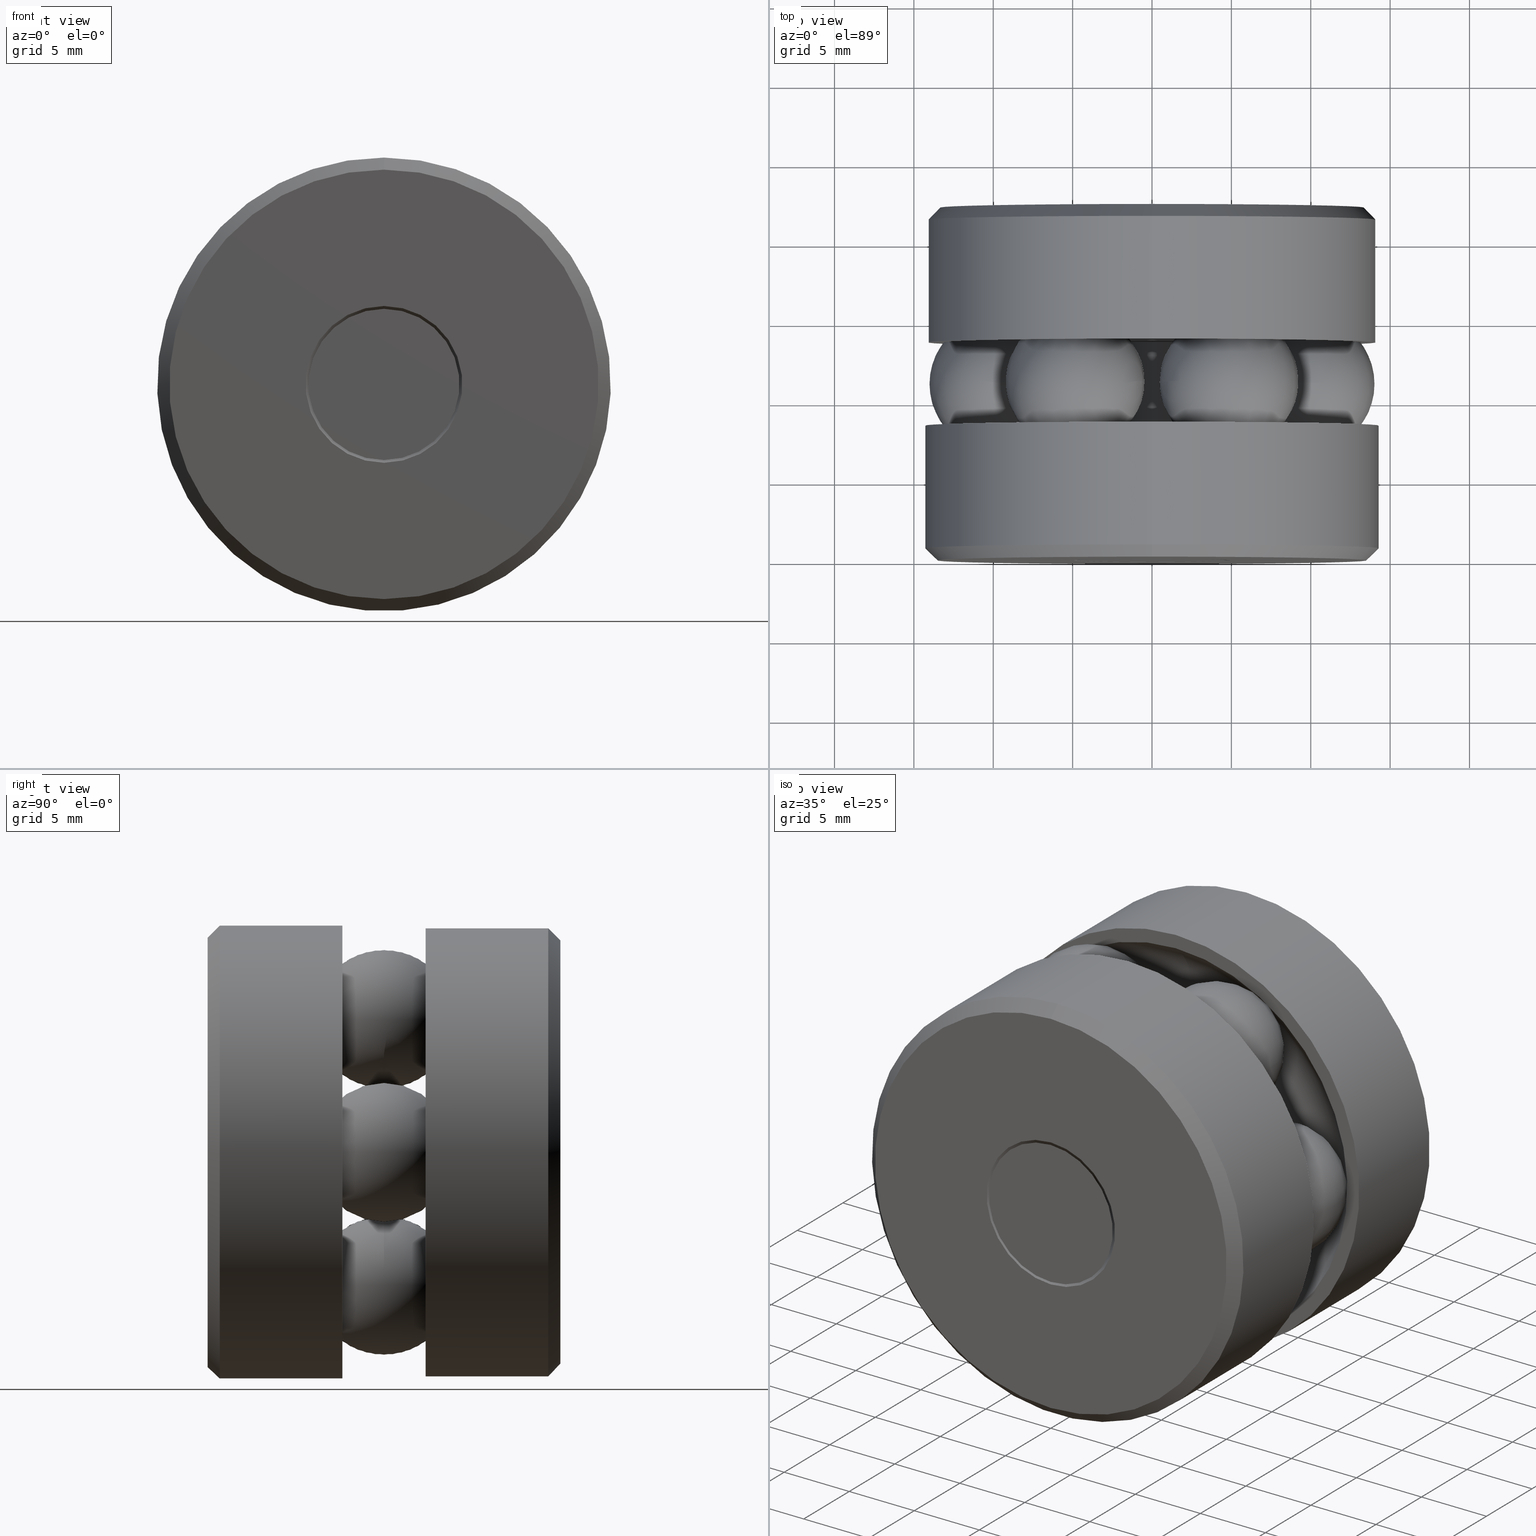
[diagram: canonical four-view strip — front | top / right | iso, engineering-drawing reading convention]
A machine part, canonical four-view strip (front | top / right | iso — engineering-drawing reading convention). The complete STEP part file that produces these views, byte-faithful:
ISO-10303-21;
HEADER;
FILE_DESCRIPTION (( 'STEP AP203' ),
    '1' );
FILE_NAME ('T-114RG_T-114RG-1002.step',
    '2016-02-04T15:34:11',
    ( '' ),
    ( '' ),
    'SwSTEP 2.0',
    'SolidWorks 2016',
    '' );
FILE_SCHEMA (( 'CONFIG_CONTROL_DESIGN' ));
ENDSEC;

DATA;
#1 = PLANE ( 'NONE',  #497 ) ;
#2 = EDGE_LOOP ( 'NONE', ( #476 ) ) ;
#3 = EDGE_CURVE ( 'NONE', #342, #342, #218, .T. ) ;
#4 = EDGE_LOOP ( 'NONE', ( #92 ) ) ;
#5 = CIRCLE ( 'NONE', #323, 0.5554999999999998800 ) ;
#6 = CC_DESIGN_DATE_AND_TIME_ASSIGNMENT ( #148, #427, ( #503 ) ) ;
#7 = CARTESIAN_POINT ( 'NONE',  ( 0.0000000000000000000, 0.1114460678118654500, 0.08299999999999999000 ) ) ;
#8 = UNCERTAINTY_MEASURE_WITH_UNIT (LENGTH_MEASURE( 1.000000000000000100E-005 ), #258, 'distance_accuracy_value', 'NONE');
#9 = ADVANCED_FACE ( 'NONE', ( #426, #419 ), #78, .F. ) ;
#10 = DATE_AND_TIME ( #131, #275 ) ;
#11 = AXIS2_PLACEMENT_3D ( 'NONE', #273, #138, #114 ) ;
#12 = DIRECTION ( 'NONE',  ( 0.0000000000000000000, 0.0000000000000000000, 1.000000000000000000 ) ) ;
#13 = ADVANCED_FACE ( 'NONE', ( #194, #514 ), #408, .F. ) ;
#14 = ORIENTED_EDGE ( 'NONE', *, *, #23, .F. ) ;
#15 = FACE_OUTER_BOUND ( 'NONE', #185, .T. ) ;
#16 = DIRECTION ( 'NONE',  ( -0.0000000000000000000, 1.000000000000000000, 0.0000000000000000000 ) ) ;
#17 = DIRECTION ( 'NONE',  ( -0.0000000000000000000, 1.000000000000000000, -0.0000000000000000000 ) ) ;
#18 = AXIS2_PLACEMENT_3D ( 'NONE', #141, #289, #176 ) ;
#19 = DIRECTION ( 'NONE',  ( -0.0000000000000000000, 1.000000000000000000, -0.0000000000000000000 ) ) ;
#20 = ORIENTED_EDGE ( 'NONE', *, *, #496, .T. ) ;
#21 = ORIENTED_EDGE ( 'NONE', *, *, #453, .T. ) ;
#22 = FACE_OUTER_BOUND ( 'NONE', #528, .T. ) ;
#23 = EDGE_CURVE ( 'NONE', #526, #526, #65, .T. ) ;
#24 = PERSON_AND_ORGANIZATION ( #445, #542 ) ;
#25 = EDGE_CURVE ( 'NONE', #215, #215, #305, .T. ) ;
#26 = CLOSED_SHELL ( 'NONE', ( #449 ) ) ;
#27 = SPHERICAL_SURFACE ( 'NONE', #314, 0.1720000000000000400 ) ;
#28 = AXIS2_PLACEMENT_3D ( 'NONE', #420, #518, #382 ) ;
#29 = DIRECTION ( 'NONE',  ( -0.0000000000000000000, 1.000000000000000000, -0.0000000000000000000 ) ) ;
#30 = ORIENTED_EDGE ( 'NONE', *, *, #496, .F. ) ;
#31 = VERTEX_POINT ( 'NONE', #482 ) ;
#32 = ORIENTED_EDGE ( 'NONE', *, *, #246, .F. ) ;
#33 = FACE_OUTER_BOUND ( 'NONE', #93, .T. ) ;
#34 = DIRECTION ( 'NONE',  ( 0.0000000000000000000, 0.0000000000000000000, -1.000000000000000000 ) ) ;
#35 = APPROVAL ( #43, 'UNSPECIFIED' ) ;
#36 = PERSON_AND_ORGANIZATION ( #445, #542 ) ;
#37 = CARTESIAN_POINT ( 'NONE',  ( 0.0000000000000000000, 0.8750000000000000000, 0.0000000000000000000 ) ) ;
#38 = AXIS2_PLACEMENT_3D ( 'NONE', #187, #182, #200 ) ;
#39 = CARTESIAN_POINT ( 'NONE',  ( 0.0000000000000000000, 0.0000000000000000000, 0.0000000000000000000 ) ) ;
#40 = ORIENTED_EDGE ( 'NONE', *, *, #541, .T. ) ;
#41 = FACE_OUTER_BOUND ( 'NONE', #169, .T. ) ;
#42 = CARTESIAN_POINT ( 'NONE',  ( 0.0000000000000000000, 0.8449999999999993100, 0.5555000000000001000 ) ) ;
#43 = APPROVAL_STATUS ( 'not_yet_approved' ) ;
#44 = DIRECTION ( 'NONE',  ( -0.8660254037844397100, 0.0000000000000000000, -0.4999999999999980000 ) ) ;
#45 = CLOSED_SHELL ( 'NONE', ( #377 ) ) ;
#46 = VERTEX_POINT ( 'NONE', #147 ) ;
#47 = ORIENTED_EDGE ( 'NONE', *, *, #117, .T. ) ;
#48 = CARTESIAN_POINT ( 'NONE',  ( 0.0000000000000000000, 0.3342999999999999900, 0.0000000000000000000 ) ) ;
#49 =( GEOMETRIC_REPRESENTATION_CONTEXT ( 3 ) GLOBAL_UNCERTAINTY_ASSIGNED_CONTEXT ( ( #8 ) ) GLOBAL_UNIT_ASSIGNED_CONTEXT ( ( #258, #368, #361 ) ) REPRESENTATION_CONTEXT ( 'NONE', 'WORKASPACE' ) );
#50 = CARTESIAN_POINT ( 'NONE',  ( 0.0000000000000000000, 0.3342999999999999900, 0.2438999999999998900 ) ) ;
#51 = SPHERICAL_SURFACE ( 'NONE', #412, 0.1720000000000000400 ) ;
#52 = EDGE_CURVE ( 'NONE', #75, #75, #329, .T. ) ;
#53 = DIRECTION ( 'NONE',  ( -0.0000000000000000000, 1.000000000000000000, -0.0000000000000000000 ) ) ;
#54 = ADVANCED_FACE ( 'NONE', ( #172, #493 ), #151, .T. ) ;
#55 = DATE_AND_TIME ( #178, #309 ) ;
#56 = ORIENTED_EDGE ( 'NONE', *, *, #206, .T. ) ;
#57 = FACE_OUTER_BOUND ( 'NONE', #380, .T. ) ;
#58 = ADVANCED_FACE ( 'NONE', ( ), #51, .T. ) ;
#59 = ADVANCED_FACE ( 'NONE', ( #293, #397 ), #480, .F. ) ;
#60 = DIRECTION ( 'NONE',  ( 0.0000000000000000000, 0.0000000000000000000, 1.000000000000000000 ) ) ;
#61 = CLOSED_SHELL ( 'NONE', ( #301, #208, #522, #103, #448 ) ) ;
#62 = DIRECTION ( 'NONE',  ( -0.0000000000000000000, 1.000000000000000000, -0.0000000000000000000 ) ) ;
#63 = VERTEX_POINT ( 'NONE', #42 ) ;
#64 = EDGE_LOOP ( 'NONE', ( #14 ) ) ;
#65 = CIRCLE ( 'NONE', #261, 0.5190999999999998900 ) ;
#66 = DIRECTION ( 'NONE',  ( -0.0000000000000000000, 1.000000000000000000, -0.0000000000000000000 ) ) ;
#67 = CC_DESIGN_APPROVAL ( #35, ( #503 ) ) ;
#68 = PERSON_AND_ORGANIZATION ( #445, #542 ) ;
#69 = ORIENTED_EDGE ( 'NONE', *, *, #117, .F. ) ;
#70 = CIRCLE ( 'NONE', #473, 0.1944460678118644900 ) ;
#71 = AXIS2_PLACEMENT_3D ( 'NONE', #87, #303, #271 ) ;
#72 = CARTESIAN_POINT ( 'NONE',  ( 0.0000000000000000000, 0.0000000000000000000, 0.1944460678118641900 ) ) ;
#73 = ORIENTED_EDGE ( 'NONE', *, *, #319, .F. ) ;
#74 = CARTESIAN_POINT ( 'NONE',  ( 0.0000000000000000000, 0.3342999999999999900, 0.0000000000000000000 ) ) ;
#75 = VERTEX_POINT ( 'NONE', #328 ) ;
#76 = CARTESIAN_POINT ( 'NONE',  ( 0.0000000000000000000, 0.5406999999999999600, 0.08300000000000010100 ) ) ;
#77 = ORIENTED_EDGE ( 'NONE', *, *, #155, .T. ) ;
#78 = TOROIDAL_SURFACE ( 'NONE', #223, 0.3814999999999998900, 0.1720000000000000100 ) ;
#79 = EDGE_CURVE ( 'NONE', #513, #513, #162, .T. ) ;
#80 = DIRECTION ( 'NONE',  ( -0.0000000000000000000, 1.000000000000000000, -0.0000000000000000000 ) ) ;
#81 = ORIENTED_EDGE ( 'NONE', *, *, #494, .T. ) ;
#82 = PERSON_AND_ORGANIZATION ( #445, #542 ) ;
#83 = ORIENTED_EDGE ( 'NONE', *, *, #119, .T. ) ;
#84 = TOROIDAL_SURFACE ( 'NONE', #28, 0.3814999999999998900, 0.1720000000000000100 ) ;
#85 = DIRECTION ( 'NONE',  ( -0.0000000000000000000, 1.000000000000000000, -0.0000000000000000000 ) ) ;
#86 = SECURITY_CLASSIFICATION_LEVEL ( 'unclassified' ) ;
#87 = CARTESIAN_POINT ( 'NONE',  ( -0.1907500000000038100, 0.4375000000000000000, -0.3303886915437609900 ) ) ;
#88 = AXIS2_PLACEMENT_3D ( 'NONE', #498, #479, #393 ) ;
#89 = ORIENTED_EDGE ( 'NONE', *, *, #119, .F. ) ;
#90 = CONICAL_SURFACE ( 'NONE', #490, 0.1873749999999990100, 0.7853981633974432800 ) ;
#91 = ORIENTED_EDGE ( 'NONE', *, *, #453, .F. ) ;
#92 = ORIENTED_EDGE ( 'NONE', *, *, #52, .T. ) ;
#93 = EDGE_LOOP ( 'NONE', ( #40 ) ) ;
#94 = CARTESIAN_POINT ( 'NONE',  ( 0.0000000000000000000, -3.503272778633803100E-016, 0.0000000000000000000 ) ) ;
#95 = EDGE_LOOP ( 'NONE', ( #83 ) ) ;
#96 = COORDINATED_UNIVERSAL_TIME_OFFSET ( 5, 0, .BEHIND. ) ;
#97 = EDGE_LOOP ( 'NONE', ( #375 ) ) ;
#98 = CC_DESIGN_SECURITY_CLASSIFICATION ( #503, ( #386 ) ) ;
#99 = FACE_BOUND ( 'NONE', #249, .T. ) ;
#100 = DIRECTION ( 'NONE',  ( 0.0000000000000000000, 0.0000000000000000000, 1.000000000000000000 ) ) ;
#101 = DIRECTION ( 'NONE',  ( -0.0000000000000000000, 1.000000000000000000, -0.0000000000000000000 ) ) ;
#102 = ADVANCED_FACE ( 'NONE', ( #385, #500 ), #109, .T. ) ;
#103 = ADVANCED_FACE ( 'NONE', ( #33, #22 ), #370, .T. ) ;
#104 = DIRECTION ( 'NONE',  ( -0.0000000000000000000, 1.000000000000000000, 0.0000000000000000000 ) ) ;
#105 = EDGE_LOOP ( 'NONE', ( #73 ) ) ;
#106 = FACE_OUTER_BOUND ( 'NONE', #95, .T. ) ;
#107 = EDGE_LOOP ( 'NONE', ( #229 ) ) ;
#108 = EDGE_LOOP ( 'NONE', ( #525 ) ) ;
#109 = PLANE ( 'NONE',  #508 ) ;
#110 = CARTESIAN_POINT ( 'NONE',  ( 0.0000000000000000000, 0.0000000000000000000, 0.0000000000000000000 ) ) ;
#111 = EDGE_LOOP ( 'NONE', ( #118 ) ) ;
#112 = DIRECTION ( 'NONE',  ( 0.0000000000000000000, 0.0000000000000000000, 1.000000000000000000 ) ) ;
#113 = CLOSED_SHELL ( 'NONE', ( #338 ) ) ;
#114 = DIRECTION ( 'NONE',  ( 0.0000000000000000000, 0.0000000000000000000, 1.000000000000000000 ) ) ;
#115 = EDGE_LOOP ( 'NONE', ( #190 ) ) ;
#116 = FACE_OUTER_BOUND ( 'NONE', #254, .T. ) ;
#117 = EDGE_CURVE ( 'NONE', #417, #417, #463, .T. ) ;
#118 = ORIENTED_EDGE ( 'NONE', *, *, #3, .T. ) ;
#119 = EDGE_CURVE ( 'NONE', #315, #315, #316, .T. ) ;
#120 = CONICAL_SURFACE ( 'NONE', #345, 0.1944460678118641900, 0.7853981633974427300 ) ;
#121 = ORIENTED_EDGE ( 'NONE', *, *, #517, .T. ) ;
#122 = DIRECTION ( 'NONE',  ( 0.4999999999999980000, 0.0000000000000000000, -0.8660254037844397100 ) ) ;
#123 = AXIS2_PLACEMENT_3D ( 'NONE', #432, #502, #125 ) ;
#124 = EDGE_LOOP ( 'NONE', ( #21 ) ) ;
#125 = DIRECTION ( 'NONE',  ( 0.0000000000000000000, -0.0000000000000000000, -1.000000000000000000 ) ) ;
#126 = EDGE_LOOP ( 'NONE', ( #227 ) ) ;
#127 = DIRECTION ( 'NONE',  ( -0.8660254037844363800, 0.0000000000000000000, 0.5000000000000040000 ) ) ;
#128 = EDGE_LOOP ( 'NONE', ( #121 ) ) ;
#129 = FACE_OUTER_BOUND ( 'NONE', #217, .T. ) ;
#130 = PRODUCT_RELATED_PRODUCT_CATEGORY ( 'detail', '', ( #516 ) ) ;
#131 = CALENDAR_DATE ( 2016, 4, 2 ) ;
#132 = MANIFOLD_SOLID_BREP ( 'BALLS[5]', #133 ) ;
#133 = CLOSED_SHELL ( 'NONE', ( #149 ) ) ;
#134 = AXIS2_PLACEMENT_3D ( 'NONE', #360, #282, #346 ) ;
#135 = DIRECTION ( 'NONE',  ( -0.4999999999999919500, 0.0000000000000000000, 0.8660254037844432600 ) ) ;
#136 = EDGE_LOOP ( 'NONE', ( #56 ) ) ;
#137 = CONICAL_SURFACE ( 'NONE', #88, 0.07800000000000001400, 0.7853981633974428400 ) ;
#138 = DIRECTION ( 'NONE',  ( -0.0000000000000000000, 1.000000000000000000, -0.0000000000000000000 ) ) ;
#139 = EDGE_LOOP ( 'NONE', ( #142 ) ) ;
#140 = ORIENTED_EDGE ( 'NONE', *, *, #319, .T. ) ;
#141 = CARTESIAN_POINT ( 'NONE',  ( -0.5624999999999998900, 0.3342999999999999900, 0.0000000000000000000 ) ) ;
#142 = ORIENTED_EDGE ( 'NONE', *, *, #3, .F. ) ;
#143 = ORIENTED_EDGE ( 'NONE', *, *, #206, .F. ) ;
#144 = CIRCLE ( 'NONE', #38, 0.08300000000000012900 ) ;
#145 = AXIS2_PLACEMENT_3D ( 'NONE', #341, #101, #209 ) ;
#146 = ORIENTED_EDGE ( 'NONE', *, *, #507, .F. ) ;
#147 = CARTESIAN_POINT ( 'NONE',  ( 0.0000000000000000000, 0.8749999999999997800, 0.5255000000000003000 ) ) ;
#148 = DATE_AND_TIME ( #283, #388 ) ;
#149 = ADVANCED_FACE ( 'NONE', ( ), #281, .T. ) ;
#150 = CARTESIAN_POINT ( 'NONE',  ( -0.5554999999999998800, 0.5406999999999999600, 0.0000000000000000000 ) ) ;
#151 = PLANE ( 'NONE',  #389 ) ;
#152 = ORIENTED_EDGE ( 'NONE', *, *, #541, .F. ) ;
#153 = EDGE_LOOP ( 'NONE', ( #527 ) ) ;
#154 = FACE_OUTER_BOUND ( 'NONE', #2, .T. ) ;
#155 = EDGE_CURVE ( 'NONE', #191, #191, #144, .T. ) ;
#156 = ADVANCED_FACE ( 'NONE', ( #274, #359 ), #364, .T. ) ;
#157 = AXIS2_PLACEMENT_3D ( 'NONE', #186, #235, #135 ) ;
#158 = CARTESIAN_POINT ( 'NONE',  ( 0.0000000000000000000, 0.3342999999999999900, 0.0000000000000000000 ) ) ;
#159 = EDGE_LOOP ( 'NONE', ( #311 ) ) ;
#160 = VERTEX_POINT ( 'NONE', #76 ) ;
#161 = EDGE_LOOP ( 'NONE', ( #356 ) ) ;
#162 = CIRCLE ( 'NONE', #436, 0.2438999999999998900 ) ;
#163 = EDGE_LOOP ( 'NONE', ( #30 ) ) ;
#164 = PERSON_AND_ORGANIZATION ( #445, #542 ) ;
#165 = EDGE_LOOP ( 'NONE', ( #47 ) ) ;
#166 = SPHERICAL_SURFACE ( 'NONE', #188, 0.1720000000000000400 ) ;
#167 = AXIS2_PLACEMENT_3D ( 'NONE', #371, #198, #195 ) ;
#168 = CARTESIAN_POINT ( 'NONE',  ( 0.0000000000000000000, 0.5406999999999999600, 0.2438999999999998100 ) ) ;
#169 = EDGE_LOOP ( 'NONE', ( #279 ) ) ;
#170 = VERTEX_POINT ( 'NONE', #7 ) ;
#171 = EDGE_LOOP ( 'NONE', ( #152 ) ) ;
#172 = FACE_OUTER_BOUND ( 'NONE', #115, .T. ) ;
#173 = CARTESIAN_POINT ( 'NONE',  ( -0.1944460678118644900, 0.8749999999999997800, 0.0000000000000000000 ) ) ;
#174 = AXIS2_PLACEMENT_3D ( 'NONE', #245, #197, #322 ) ;
#175 = MANIFOLD_SOLID_BREP ( 'Revolve3', #113 ) ;
#176 = DIRECTION ( 'NONE',  ( 0.0000000000000000000, 0.0000000000000000000, 1.000000000000000000 ) ) ;
#177 = AXIS2_PLACEMENT_3D ( 'NONE', #387, #384, #317 ) ;
#178 = CALENDAR_DATE ( 2016, 4, 2 ) ;
#179 = CARTESIAN_POINT ( 'NONE',  ( 0.0000000000000000000, 0.1093750000000000300, 0.07800000000000001400 ) ) ;
#180 = ORIENTED_EDGE ( 'NONE', *, *, #79, .T. ) ;
#181 = FACE_BOUND ( 'NONE', #153, .T. ) ;
#182 = DIRECTION ( 'NONE',  ( -0.0000000000000000000, 1.000000000000000000, -0.0000000000000000000 ) ) ;
#183 = MANIFOLD_SOLID_BREP ( 'BALLS[4]', #45 ) ;
#184 = APPROVAL_STATUS ( 'not_yet_approved' ) ;
#185 = EDGE_LOOP ( 'NONE', ( #143 ) ) ;
#186 = CARTESIAN_POINT ( 'NONE',  ( 0.1907499999999968700, 0.4375000000000000000, -0.3303886915437649900 ) ) ;
#187 = CARTESIAN_POINT ( 'NONE',  ( 0.0000000000000000000, 0.7635539321881345000, 0.0000000000000000000 ) ) ;
#188 = AXIS2_PLACEMENT_3D ( 'NONE', #251, #537, #474 ) ;
#189 = APPROVAL_ROLE ( '' ) ;
#190 = ORIENTED_EDGE ( 'NONE', *, *, #438, .T. ) ;
#191 = VERTEX_POINT ( 'NONE', #409 ) ;
#192 = ORIENTED_EDGE ( 'NONE', *, *, #155, .F. ) ;
#193 = DIRECTION ( 'NONE',  ( -0.0000000000000000000, 1.000000000000000000, -0.0000000000000000000 ) ) ;
#194 = FACE_OUTER_BOUND ( 'NONE', #242, .T. ) ;
#195 = DIRECTION ( 'NONE',  ( 0.0000000000000000000, -0.0000000000000000000, -1.000000000000000000 ) ) ;
#196 = CARTESIAN_POINT ( 'NONE',  ( 0.0000000000000000000, 0.02999999999999999200, 0.5625000000000000000 ) ) ;
#197 = DIRECTION ( 'NONE',  ( 0.0000000000000000000, 0.0000000000000000000, 1.000000000000000000 ) ) ;
#198 = DIRECTION ( 'NONE',  ( 0.0000000000000000000, -1.000000000000000000, 0.0000000000000000000 ) ) ;
#199 = CARTESIAN_POINT ( 'NONE',  ( 0.0000000000000000000, 0.0000000000000000000, 0.0000000000000000000 ) ) ;
#200 = DIRECTION ( 'NONE',  ( 0.0000000000000000000, 0.0000000000000000000, 1.000000000000000000 ) ) ;
#201 = DATE_AND_TIME ( #318, #422 ) ;
#202 = ADVANCED_FACE ( 'NONE', ( #260, #129 ), #243, .T. ) ;
#203 = EDGE_LOOP ( 'NONE', ( #533 ) ) ;
#204 = FACE_OUTER_BOUND ( 'NONE', #349, .T. ) ;
#205 = DIRECTION ( 'NONE',  ( -0.5000000000000040000, 0.0000000000000000000, -0.8660254037844363800 ) ) ;
#206 = EDGE_CURVE ( 'NONE', #63, #63, #348, .T. ) ;
#207 = AXIS2_PLACEMENT_3D ( 'NONE', #547, #512, #511 ) ;
#208 = ADVANCED_FACE ( 'NONE', ( #116 ), #464, .T. ) ;
#209 = DIRECTION ( 'NONE',  ( 0.0000000000000000000, 0.0000000000000000000, 1.000000000000000000 ) ) ;
#210 = ADVANCED_BREP_SHAPE_REPRESENTATION ( 'T-114RG_T-114RG-1002', ( #285, #404, #488, #175, #269, #471, #372, #183, #132, #174 ), #49 ) ;
#211 = EDGE_LOOP ( 'NONE', ( #32 ) ) ;
#212 = DIRECTION ( 'NONE',  ( 0.0000000000000000000, 0.0000000000000000000, 1.000000000000000000 ) ) ;
#213 = EDGE_LOOP ( 'NONE', ( #192 ) ) ;
#214 = DIRECTION ( 'NONE',  ( -0.0000000000000000000, 1.000000000000000000, -0.0000000000000000000 ) ) ;
#215 = VERTEX_POINT ( 'NONE', #196 ) ;
#216 = CARTESIAN_POINT ( 'NONE',  ( 0.0000000000000000000, 0.5406999999999999600, 0.0000000000000000000 ) ) ;
#217 = EDGE_LOOP ( 'NONE', ( #439 ) ) ;
#218 = CIRCLE ( 'NONE', #145, 0.1944460678118641900 ) ;
#219 = CARTESIAN_POINT ( 'NONE',  ( -0.2438999999999997800, 0.3343000000000000400, 0.0000000000000000000 ) ) ;
#220 = CC_DESIGN_PERSON_AND_ORGANIZATION_ASSIGNMENT ( #446, #237, ( #516 ) ) ;
#221 = DIRECTION ( 'NONE',  ( 0.0000000000000000000, 0.0000000000000000000, 1.000000000000000000 ) ) ;
#222 = EDGE_LOOP ( 'NONE', ( #140 ) ) ;
#223 = AXIS2_PLACEMENT_3D ( 'NONE', #302, #321, #339 ) ;
#224 = APPROVAL_DATE_TIME ( #335, #280 ) ;
#225 = EDGE_LOOP ( 'NONE', ( #20 ) ) ;
#226 = FACE_BOUND ( 'NONE', #97, .T. ) ;
#227 = ORIENTED_EDGE ( 'NONE', *, *, #23, .T. ) ;
#228 = EDGE_CURVE ( 'NONE', #499, #499, #447, .T. ) ;
#229 = ORIENTED_EDGE ( 'NONE', *, *, #79, .F. ) ;
#230 = CIRCLE ( 'NONE', #539, 0.07800000000000001400 ) ;
#231 = PERSON_AND_ORGANIZATION_ROLE ( 'creator' ) ;
#232 = EDGE_LOOP ( 'NONE', ( #146 ) ) ;
#233 = AXIS2_PLACEMENT_3D ( 'NONE', #353, #467, #357 ) ;
#234 = ORIENTED_EDGE ( 'NONE', *, *, #494, .F. ) ;
#235 = DIRECTION ( 'NONE',  ( 0.8660254037844432600, -0.0000000000000000000, 0.4999999999999919500 ) ) ;
#236 = EDGE_LOOP ( 'NONE', ( #180 ) ) ;
#237 = PERSON_AND_ORGANIZATION_ROLE ( 'design_owner' ) ;
#238 = DIRECTION ( 'NONE',  ( -0.0000000000000000000, 1.000000000000000000, -0.0000000000000000000 ) ) ;
#239 = DIRECTION ( 'NONE',  ( 0.0000000000000000000, 0.0000000000000000000, 1.000000000000000000 ) ) ;
#240 = EDGE_LOOP ( 'NONE', ( #89 ) ) ;
#241 = APPROVAL_PERSON_ORGANIZATION ( #347, #280, #510 ) ;
#242 = EDGE_LOOP ( 'NONE', ( #77 ) ) ;
#243 = CONICAL_SURFACE ( 'NONE', #134, 0.5625000000000000000, 0.7853981633974429500 ) ;
#244 = DIRECTION ( 'NONE',  ( 0.0000000000000000000, 0.0000000000000000000, 1.000000000000000000 ) ) ;
#245 = CARTESIAN_POINT ( 'NONE',  ( 0.0000000000000000000, 0.0000000000000000000, 0.0000000000000000000 ) ) ;
#246 = EDGE_CURVE ( 'NONE', #407, #407, #5, .T. ) ;
#247 = DIRECTION ( 'NONE',  ( 0.0000000000000000000, 0.0000000000000000000, 1.000000000000000000 ) ) ;
#248 = PLANE ( 'NONE',  #18 ) ;
#249 = EDGE_LOOP ( 'NONE', ( #69 ) ) ;
#250 = DIRECTION ( 'NONE',  ( -0.0000000000000000000, 1.000000000000000000, -0.0000000000000000000 ) ) ;
#251 = CARTESIAN_POINT ( 'NONE',  ( 0.3814999999999998900, 0.4375000000000000000, -2.664000261537309900E-015 ) ) ;
#252 = CARTESIAN_POINT ( 'NONE',  ( 0.0000000000000000000, 0.0000000000000000000, 0.0000000000000000000 ) ) ;
#253 = CIRCLE ( 'NONE', #460, 0.5190999999999998900 ) ;
#254 = EDGE_LOOP ( 'NONE', ( #81 ) ) ;
#255 = CARTESIAN_POINT ( 'NONE',  ( 0.0000000000000000000, 0.8750000000000000000, 0.1944460678118644900 ) ) ;
#256 = CARTESIAN_POINT ( 'NONE',  ( 0.0000000000000000000, 0.7635539321881345000, 0.0000000000000000000 ) ) ;
#257 = PRODUCT_DEFINITION ( 'UNKNOWN', '', #386, #540 ) ;
#258 =( CONVERSION_BASED_UNIT ( 'INCH', #462 ) LENGTH_UNIT ( ) NAMED_UNIT ( #489 ) );
#259 = DIRECTION ( 'NONE',  ( -0.0000000000000000000, 1.000000000000000000, -0.0000000000000000000 ) ) ;
#260 = FACE_BOUND ( 'NONE', #225, .T. ) ;
#261 = AXIS2_PLACEMENT_3D ( 'NONE', #158, #383, #379 ) ;
#262 = ADVANCED_FACE ( 'NONE', ( #452, #435 ), #521, .F. ) ;
#263 = DIRECTION ( 'NONE',  ( -0.0000000000000000000, 1.000000000000000000, -0.0000000000000000000 ) ) ;
#264 = PLANE ( 'NONE',  #424 ) ;
#265 = DIRECTION ( 'NONE',  ( 0.0000000000000000000, 0.0000000000000000000, 1.000000000000000000 ) ) ;
#266 = ADVANCED_FACE ( 'NONE', ( #531, #99 ), #264, .T. ) ;
#267 = DIRECTION ( 'NONE',  ( 0.0000000000000000000, 0.0000000000000000000, -1.000000000000000000 ) ) ;
#268 = FACE_BOUND ( 'NONE', #64, .T. ) ;
#269 = MANIFOLD_SOLID_BREP ( 'BALLS[1]', #26 ) ;
#270 = AXIS2_PLACEMENT_3D ( 'NONE', #39, #430, #313 ) ;
#271 = DIRECTION ( 'NONE',  ( 0.5000000000000101000, 0.0000000000000000000, 0.8660254037844328200 ) ) ;
#272 = CLOSED_SHELL ( 'NONE', ( #411 ) ) ;
#273 = CARTESIAN_POINT ( 'NONE',  ( 0.0000000000000000000, 0.0000000000000000000, 0.0000000000000000000 ) ) ;
#274 = FACE_BOUND ( 'NONE', #111, .T. ) ;
#275 = LOCAL_TIME ( 10, 34, 11.00000000000000000, #373 ) ;
#276 = AXIS2_PLACEMENT_3D ( 'NONE', #252, #250, #247 ) ;
#277 = CIRCLE ( 'NONE', #290, 0.2438999999999998100 ) ;
#278 = CARTESIAN_POINT ( 'NONE',  ( 0.0000000000000000000, 0.8750000000000000000, 0.1873749999999990100 ) ) ;
#279 = ORIENTED_EDGE ( 'NONE', *, *, #25, .T. ) ;
#280 = APPROVAL ( #296, 'UNSPECIFIED' ) ;
#281 = SPHERICAL_SURFACE ( 'NONE', #71, 0.1720000000000000400 ) ;
#282 = DIRECTION ( 'NONE',  ( -0.0000000000000000000, 1.000000000000000000, -0.0000000000000000000 ) ) ;
#283 = CALENDAR_DATE ( 2016, 4, 2 ) ;
#284 = AXIS2_PLACEMENT_3D ( 'NONE', #343, #259, #330 ) ;
#285 = MANIFOLD_SOLID_BREP ( 'Revolve2[1]', #61 ) ;
#286 = DIRECTION ( 'NONE',  ( 0.0000000000000000000, -0.0000000000000000000, -1.000000000000000000 ) ) ;
#287 = CYLINDRICAL_SURFACE ( 'NONE', #270, 0.5624999999999998900 ) ;
#288 = DIRECTION ( 'NONE',  ( -0.0000000000000000000, 1.000000000000000000, 0.0000000000000000000 ) ) ;
#289 = DIRECTION ( 'NONE',  ( -0.0000000000000000000, 1.000000000000000000, 0.0000000000000000000 ) ) ;
#290 = AXIS2_PLACEMENT_3D ( 'NONE', #543, #193, #396 ) ;
#291 = CARTESIAN_POINT ( 'NONE',  ( 0.0000000000000000000, -3.503272778633803100E-016, 0.5324999999999999700 ) ) ;
#292 = VERTEX_POINT ( 'NONE', #291 ) ;
#293 = FACE_OUTER_BOUND ( 'NONE', #165, .T. ) ;
#294 =( LENGTH_UNIT ( ) NAMED_UNIT ( * ) SI_UNIT ( $, .METRE. ) );
#295 = PERSON_AND_ORGANIZATION ( #445, #542 ) ;
#296 = APPROVAL_STATUS ( 'not_yet_approved' ) ;
#297 = ADVANCED_FACE ( 'NONE', ( #336, #226 ), #506, .T. ) ;
#298 = FACE_BOUND ( 'NONE', #171, .T. ) ;
#299 = AXIS2_PLACEMENT_3D ( 'NONE', #440, #104, #100 ) ;
#300 = DIRECTION ( 'NONE',  ( 0.0000000000000000000, -1.000000000000000000, 0.0000000000000000000 ) ) ;
#301 = ADVANCED_FACE ( 'NONE', ( #544 ), #1, .T. ) ;
#302 = CARTESIAN_POINT ( 'NONE',  ( 0.0000000000000000000, 0.4375000000000000000, 0.0000000000000000000 ) ) ;
#303 = DIRECTION ( 'NONE',  ( 0.8660254037844328200, 0.0000000000000000000, -0.5000000000000101000 ) ) ;
#304 = VERTEX_POINT ( 'NONE', #255 ) ;
#305 = CIRCLE ( 'NONE', #177, 0.5625000000000000000 ) ;
#306 = CARTESIAN_POINT ( 'NONE',  ( 0.1907500000000015000, 0.4375000000000000000, 0.3303886915437624400 ) ) ;
#307 = CC_DESIGN_APPROVAL ( #280, ( #257 ) ) ;
#308 = AXIS2_PLACEMENT_3D ( 'NONE', #334, #327, #324 ) ;
#309 = LOCAL_TIME ( 10, 34, 11.00000000000000000, #413 ) ;
#310 = CIRCLE ( 'NONE', #524, 0.08299999999999999000 ) ;
#311 = ORIENTED_EDGE ( 'NONE', *, *, #350, .T. ) ;
#312 = CARTESIAN_POINT ( 'NONE',  ( 0.0000000000000000000, 0.3343000000000001500, 0.08300000000000006000 ) ) ;
#313 = DIRECTION ( 'NONE',  ( 0.0000000000000000000, 0.0000000000000000000, 1.000000000000000000 ) ) ;
#314 = AXIS2_PLACEMENT_3D ( 'NONE', #459, #44, #122 ) ;
#315 = VERTEX_POINT ( 'NONE', #509 ) ;
#316 = CIRCLE ( 'NONE', #485, 0.5624999999999998900 ) ;
#317 = DIRECTION ( 'NONE',  ( 0.0000000000000000000, 0.0000000000000000000, 1.000000000000000000 ) ) ;
#318 = CALENDAR_DATE ( 2016, 4, 2 ) ;
#319 = EDGE_CURVE ( 'NONE', #304, #304, #70, .T. ) ;
#320 = FACE_OUTER_BOUND ( 'NONE', #124, .T. ) ;
#321 = DIRECTION ( 'NONE',  ( -0.0000000000000000000, 1.000000000000000000, -0.0000000000000000000 ) ) ;
#322 = DIRECTION ( 'NONE',  ( 1.000000000000000000, 0.0000000000000000000, 0.0000000000000000000 ) ) ;
#323 = AXIS2_PLACEMENT_3D ( 'NONE', #216, #214, #212 ) ;
#324 = DIRECTION ( 'NONE',  ( 0.0000000000000000000, 0.0000000000000000000, 1.000000000000000000 ) ) ;
#325 = CARTESIAN_POINT ( 'NONE',  ( 0.0000000000000000000, 0.8750000000000000000, 0.0000000000000000000 ) ) ;
#326 = SHAPE_DEFINITION_REPRESENTATION ( #332, #210 ) ;
#327 = DIRECTION ( 'NONE',  ( -0.0000000000000000000, 1.000000000000000000, -0.0000000000000000000 ) ) ;
#328 = CARTESIAN_POINT ( 'NONE',  ( 0.0000000000000000000, 0.7656250000000000000, 0.07800000000000012500 ) ) ;
#329 = CIRCLE ( 'NONE', #308, 0.07800000000000012500 ) ;
#330 = DIRECTION ( 'NONE',  ( 0.0000000000000000000, 0.0000000000000000000, 1.000000000000000000 ) ) ;
#331 = CARTESIAN_POINT ( 'NONE',  ( 0.0000000000000000000, 0.0000000000000000000, 0.1873749999999988500 ) ) ;
#332 = PRODUCT_DEFINITION_SHAPE ( 'NONE', 'NONE',  #257 ) ;
#333 = CC_DESIGN_PERSON_AND_ORGANIZATION_ASSIGNMENT ( #82, #402, ( #257 ) ) ;
#334 = CARTESIAN_POINT ( 'NONE',  ( 0.0000000000000000000, 0.7656250000000000000, 0.0000000000000000000 ) ) ;
#335 = DATE_AND_TIME ( #433, #530 ) ;
#336 = FACE_OUTER_BOUND ( 'NONE', #136, .T. ) ;
#337 = DIRECTION ( 'NONE',  ( 1.000000000000000000, 0.0000000000000000000, 0.0000000000000000000 ) ) ;
#338 = ADVANCED_FACE ( 'NONE', ( ), #415, .T. ) ;
#339 = DIRECTION ( 'NONE',  ( 0.0000000000000000000, 0.0000000000000000000, 1.000000000000000000 ) ) ;
#340 = ADVANCED_FACE ( 'NONE', ( #320, #204 ), #84, .F. ) ;
#341 = CARTESIAN_POINT ( 'NONE',  ( 0.0000000000000000000, 0.0000000000000000000, 0.0000000000000000000 ) ) ;
#342 = VERTEX_POINT ( 'NONE', #72 ) ;
#343 = CARTESIAN_POINT ( 'NONE',  ( 0.0000000000000000000, 0.0000000000000000000, 0.0000000000000000000 ) ) ;
#344 = CLOSED_SHELL ( 'NONE', ( #416, #202, #156, #486, #59, #266, #9, #523 ) ) ;
#345 = AXIS2_PLACEMENT_3D ( 'NONE', #199, #428, #34 ) ;
#346 = DIRECTION ( 'NONE',  ( 0.0000000000000000000, 0.0000000000000000000, 1.000000000000000000 ) ) ;
#347 = PERSON_AND_ORGANIZATION ( #445, #542 ) ;
#348 = CIRCLE ( 'NONE', #207, 0.5555000000000001000 ) ;
#349 = EDGE_LOOP ( 'NONE', ( #536 ) ) ;
#350 = EDGE_CURVE ( 'NONE', #170, #170, #310, .T. ) ;
#351 = AXIS2_PLACEMENT_3D ( 'NONE', #256, #238, #443 ) ;
#352 = CIRCLE ( 'NONE', #441, 0.08300000000000010100 ) ;
#353 = CARTESIAN_POINT ( 'NONE',  ( 0.0000000000000000000, 0.8749999999999997800, 0.0000000000000000000 ) ) ;
#354 = CLOSED_SHELL ( 'NONE', ( #58 ) ) ;
#355 = CARTESIAN_POINT ( 'NONE',  ( 0.0000000000000000000, 0.1093750000000000300, 0.0000000000000000000 ) ) ;
#356 = ORIENTED_EDGE ( 'NONE', *, *, #350, .F. ) ;
#357 = DIRECTION ( 'NONE',  ( 0.0000000000000000000, 0.0000000000000000000, 1.000000000000000000 ) ) ;
#358 = CC_DESIGN_DATE_AND_TIME_ASSIGNMENT ( #201, #369, ( #257 ) ) ;
#359 = FACE_OUTER_BOUND ( 'NONE', #163, .T. ) ;
#360 = CARTESIAN_POINT ( 'NONE',  ( 0.0000000000000000000, 0.02999999999999999200, 0.0000000000000000000 ) ) ;
#361 =( NAMED_UNIT ( * ) SI_UNIT ( $, .STERADIAN. ) SOLID_ANGLE_UNIT ( ) );
#362 = CARTESIAN_POINT ( 'NONE',  ( 0.0000000000000000000, 0.3343000000000001500, 0.0000000000000000000 ) ) ;
#363 = CARTESIAN_POINT ( 'NONE',  ( 0.0000000000000000000, 0.5406999999999999600, 0.0000000000000000000 ) ) ;
#364 = PLANE ( 'NONE',  #167 ) ;
#365 = MECHANICAL_CONTEXT ( 'NONE', #461, 'mechanical' ) ;
#366 = FACE_BOUND ( 'NONE', #4, .T. ) ;
#367 = AXIS2_PLACEMENT_3D ( 'NONE', #94, #477, #425 ) ;
#368 =( NAMED_UNIT ( * ) PLANE_ANGLE_UNIT ( ) SI_UNIT ( $, .RADIAN. ) );
#369 = DATE_TIME_ROLE ( 'creation_date' ) ;
#370 = CYLINDRICAL_SURFACE ( 'NONE', #11, 0.07800000000000006900 ) ;
#371 = CARTESIAN_POINT ( 'NONE',  ( -0.1944460678118641900, -1.751636389316901500E-016, 0.0000000000000000000 ) ) ;
#372 = MANIFOLD_SOLID_BREP ( 'BALLS[3]', #272 ) ;
#373 = COORDINATED_UNIVERSAL_TIME_OFFSET ( 5, 0, .BEHIND. ) ;
#374 = ADVANCED_FACE ( 'NONE', ( #181, #57 ), #429, .T. ) ;
#375 = ORIENTED_EDGE ( 'NONE', *, *, #438, .F. ) ;
#376 = DIRECTION ( 'NONE',  ( 0.0000000000000000000, 0.0000000000000000000, -1.000000000000000000 ) ) ;
#377 = ADVANCED_FACE ( 'NONE', ( ), #423, .T. ) ;
#378 = FACE_BOUND ( 'NONE', #159, .T. ) ;
#379 = DIRECTION ( 'NONE',  ( 0.0000000000000000000, 0.0000000000000000000, 1.000000000000000000 ) ) ;
#380 = EDGE_LOOP ( 'NONE', ( #91 ) ) ;
#381 = CARTESIAN_POINT ( 'NONE',  ( -0.3814999999999998900, 0.4375000000000000000, 0.0000000000000000000 ) ) ;
#382 = DIRECTION ( 'NONE',  ( 0.0000000000000000000, 0.0000000000000000000, 1.000000000000000000 ) ) ;
#383 = DIRECTION ( 'NONE',  ( -0.0000000000000000000, 1.000000000000000000, -0.0000000000000000000 ) ) ;
#384 = DIRECTION ( 'NONE',  ( -0.0000000000000000000, 1.000000000000000000, -0.0000000000000000000 ) ) ;
#385 = FACE_BOUND ( 'NONE', #128, .T. ) ;
#386 = PRODUCT_DEFINITION_FORMATION_WITH_SPECIFIED_SOURCE ( 'ANY', '', #516, .NOT_KNOWN. ) ;
#387 = CARTESIAN_POINT ( 'NONE',  ( 0.0000000000000000000, 0.02999999999999999200, 0.0000000000000000000 ) ) ;
#388 = LOCAL_TIME ( 10, 34, 11.00000000000000000, #484 ) ;
#389 = AXIS2_PLACEMENT_3D ( 'NONE', #173, #288, #265 ) ;
#390 = CIRCLE ( 'NONE', #233, 0.5255000000000003000 ) ;
#391 = DIRECTION ( 'NONE',  ( 0.0000000000000000000, 0.0000000000000000000, 1.000000000000000000 ) ) ;
#392 = CARTESIAN_POINT ( 'NONE',  ( 0.0000000000000000000, 0.8750000000000000000, 0.0000000000000000000 ) ) ;
#393 = DIRECTION ( 'NONE',  ( 0.0000000000000000000, 0.0000000000000000000, -1.000000000000000000 ) ) ;
#394 = AXIS2_PLACEMENT_3D ( 'NONE', #37, #29, #406 ) ;
#395 = VERTEX_POINT ( 'NONE', #278 ) ;
#396 = DIRECTION ( 'NONE',  ( 0.0000000000000000000, 0.0000000000000000000, 1.000000000000000000 ) ) ;
#397 = FACE_OUTER_BOUND ( 'NONE', #161, .T. ) ;
#398 = APPLICATION_PROTOCOL_DEFINITION ( 'international standard', 'config_control_design', 1994, #461 ) ;
#399 = APPROVAL_DATE_TIME ( #55, #410 ) ;
#400 = DIRECTION ( 'NONE',  ( 0.0000000000000000000, 0.0000000000000000000, 1.000000000000000000 ) ) ;
#401 = FACE_OUTER_BOUND ( 'NONE', #203, .T. ) ;
#402 = PERSON_AND_ORGANIZATION_ROLE ( 'creator' ) ;
#403 = AXIS2_PLACEMENT_3D ( 'NONE', #421, #466, #267 ) ;
#404 = MANIFOLD_SOLID_BREP ( 'Revolve2[2]', #475 ) ;
#405 = DIRECTION ( 'NONE',  ( 0.0000000000000000000, 0.0000000000000000000, 1.000000000000000000 ) ) ;
#406 = DIRECTION ( 'NONE',  ( 0.0000000000000000000, 0.0000000000000000000, 1.000000000000000000 ) ) ;
#407 = VERTEX_POINT ( 'NONE', #504 ) ;
#408 = CYLINDRICAL_SURFACE ( 'NONE', #284, 0.08300000000000011500 ) ;
#409 = CARTESIAN_POINT ( 'NONE',  ( 0.0000000000000000000, 0.7635539321881345000, 0.08300000000000012900 ) ) ;
#410 = APPROVAL ( #184, 'UNSPECIFIED' ) ;
#411 = ADVANCED_FACE ( 'NONE', ( ), #166, .T. ) ;
#412 = AXIS2_PLACEMENT_3D ( 'NONE', #306, #127, #205 ) ;
#413 = COORDINATED_UNIVERSAL_TIME_OFFSET ( 5, 0, .BEHIND. ) ;
#414 = DIRECTION ( 'NONE',  ( 0.0000000000000000000, -1.000000000000000000, 0.0000000000000000000 ) ) ;
#415 = SPHERICAL_SURFACE ( 'NONE', #550, 0.1720000000000000400 ) ;
#416 = ADVANCED_FACE ( 'NONE', ( #41, #495 ), #287, .T. ) ;
#417 = VERTEX_POINT ( 'NONE', #312 ) ;
#418 = AXIS2_PLACEMENT_3D ( 'NONE', #442, #434, #519 ) ;
#419 = FACE_OUTER_BOUND ( 'NONE', #107, .T. ) ;
#420 = CARTESIAN_POINT ( 'NONE',  ( 0.0000000000000000000, 0.4375000000000000000, 0.0000000000000000000 ) ) ;
#421 = CARTESIAN_POINT ( 'NONE',  ( 0.0000000000000000000, 0.8749999999999997800, 0.0000000000000000000 ) ) ;
#422 = LOCAL_TIME ( 10, 34, 11.00000000000000000, #520 ) ;
#423 = SPHERICAL_SURFACE ( 'NONE', #157, 0.1720000000000000400 ) ;
#424 = AXIS2_PLACEMENT_3D ( 'NONE', #219, #16, #12 ) ;
#425 = DIRECTION ( 'NONE',  ( 0.0000000000000000000, 0.0000000000000000000, 1.000000000000000000 ) ) ;
#426 = FACE_OUTER_BOUND ( 'NONE', #126, .T. ) ;
#427 = DATE_TIME_ROLE ( 'classification_date' ) ;
#428 = DIRECTION ( 'NONE',  ( 0.0000000000000000000, -1.000000000000000000, 0.0000000000000000000 ) ) ;
#429 = PLANE ( 'NONE',  #123 ) ;
#430 = DIRECTION ( 'NONE',  ( -0.0000000000000000000, 1.000000000000000000, -0.0000000000000000000 ) ) ;
#431 = CC_DESIGN_APPROVAL ( #410, ( #386 ) ) ;
#432 = CARTESIAN_POINT ( 'NONE',  ( -0.2438999999999998100, 0.5406999999999999600, 0.0000000000000000000 ) ) ;
#433 = CALENDAR_DATE ( 2016, 4, 2 ) ;
#434 = DIRECTION ( 'NONE',  ( -0.0000000000000000000, 1.000000000000000000, -0.0000000000000000000 ) ) ;
#435 = FACE_BOUND ( 'NONE', #213, .T. ) ;
#436 = AXIS2_PLACEMENT_3D ( 'NONE', #48, #19, #112 ) ;
#437 = CARTESIAN_POINT ( 'NONE',  ( 0.0000000000000000000, 0.5406999999999999600, 0.0000000000000000000 ) ) ;
#438 = EDGE_CURVE ( 'NONE', #46, #46, #390, .T. ) ;
#439 = ORIENTED_EDGE ( 'NONE', *, *, #25, .F. ) ;
#440 = CARTESIAN_POINT ( 'NONE',  ( 0.0000000000000000000, 0.8750000000000001100, 0.0000000000000000000 ) ) ;
#441 = AXIS2_PLACEMENT_3D ( 'NONE', #363, #53, #239 ) ;
#442 = CARTESIAN_POINT ( 'NONE',  ( 0.0000000000000000000, 0.0000000000000000000, 0.0000000000000000000 ) ) ;
#443 = DIRECTION ( 'NONE',  ( 0.0000000000000000000, 0.0000000000000000000, 1.000000000000000000 ) ) ;
#444 = APPROVAL_ROLE ( '' ) ;
#445 = PERSON ( 'UNSPECIFIED', 'UNSPECIFIED', 'UNSPECIFIED', ('UNSPECIFIED'), ('UNSPECIFIED'), ('UNSPECIFIED') ) ;
#446 = PERSON_AND_ORGANIZATION ( #445, #542 ) ;
#447 = CIRCLE ( 'NONE', #276, 0.1873749999999988500 ) ;
#448 = ADVANCED_FACE ( 'NONE', ( #401, #298 ), #137, .T. ) ;
#449 = ADVANCED_FACE ( 'NONE', ( ), #27, .T. ) ;
#450 = CIRCLE ( 'NONE', #367, 0.5324999999999999700 ) ;
#451 = CC_DESIGN_PERSON_AND_ORGANIZATION_ASSIGNMENT ( #295, #231, ( #386 ) ) ;
#452 = FACE_OUTER_BOUND ( 'NONE', #222, .T. ) ;
#453 = EDGE_CURVE ( 'NONE', #491, #491, #277, .T. ) ;
#454 = APPROVAL_DATE_TIME ( #10, #35 ) ;
#455 = AXIS2_PLACEMENT_3D ( 'NONE', #110, #85, #244 ) ;
#456 = CIRCLE ( 'NONE', #394, 0.1873749999999990100 ) ;
#457 = EDGE_LOOP ( 'NONE', ( #234 ) ) ;
#458 = ORIENTED_EDGE ( 'NONE', *, *, #52, .F. ) ;
#459 = CARTESIAN_POINT ( 'NONE',  ( -0.1907499999999992000, 0.4375000000000000000, 0.3303886915437636600 ) ) ;
#460 = AXIS2_PLACEMENT_3D ( 'NONE', #437, #263, #548 ) ;
#461 = APPLICATION_CONTEXT ( 'configuration controlled 3d designs of mechanical parts and assemblies' ) ;
#462 = LENGTH_MEASURE_WITH_UNIT ( LENGTH_MEASURE( 0.02539999999999999900 ), #294 );
#463 = CIRCLE ( 'NONE', #532, 0.08300000000000006000 ) ;
#464 = PLANE ( 'NONE',  #299 ) ;
#465 = DIRECTION ( 'NONE',  ( 0.0000000000000000000, 0.0000000000000000000, 1.000000000000000000 ) ) ;
#466 = DIRECTION ( 'NONE',  ( 0.0000000000000000000, -1.000000000000000000, 0.0000000000000000000 ) ) ;
#467 = DIRECTION ( 'NONE',  ( -0.0000000000000000000, 1.000000000000000000, -0.0000000000000000000 ) ) ;
#468 = APPROVAL_PERSON_ORGANIZATION ( #24, #35, #189 ) ;
#469 = PERSON_AND_ORGANIZATION_ROLE ( 'design_supplier' ) ;
#470 = PERSON_AND_ORGANIZATION_ROLE ( 'classification_officer' ) ;
#471 = MANIFOLD_SOLID_BREP ( 'BALLS[2]', #354 ) ;
#472 = FACE_OUTER_BOUND ( 'NONE', #139, .T. ) ;
#473 = AXIS2_PLACEMENT_3D ( 'NONE', #392, #17, #405 ) ;
#474 = DIRECTION ( 'NONE',  ( -1.000000000000000000, 0.0000000000000000000, 6.982962677686266700E-015 ) ) ;
#475 = CLOSED_SHELL ( 'NONE', ( #262, #13, #374, #340, #102, #487, #297, #54 ) ) ;
#476 = ORIENTED_EDGE ( 'NONE', *, *, #246, .T. ) ;
#477 = DIRECTION ( 'NONE',  ( -0.0000000000000000000, 1.000000000000000000, -0.0000000000000000000 ) ) ;
#478 = VERTEX_POINT ( 'NONE', #179 ) ;
#479 = DIRECTION ( 'NONE',  ( 0.0000000000000000000, -1.000000000000000000, 0.0000000000000000000 ) ) ;
#480 = CYLINDRICAL_SURFACE ( 'NONE', #455, 0.08300000000000003200 ) ;
#481 = CC_DESIGN_PERSON_AND_ORGANIZATION_ASSIGNMENT ( #164, #469, ( #386 ) ) ;
#482 = CARTESIAN_POINT ( 'NONE',  ( 0.0000000000000000000, 0.5406999999999999600, 0.5190999999999998900 ) ) ;
#483 = DIRECTION ( 'NONE',  ( 0.0000000000000000000, -0.0000000000000000000, -1.000000000000000000 ) ) ;
#484 = COORDINATED_UNIVERSAL_TIME_OFFSET ( 5, 0, .BEHIND. ) ;
#485 = AXIS2_PLACEMENT_3D ( 'NONE', #74, #62, #221 ) ;
#486 = ADVANCED_FACE ( 'NONE', ( #378, #472 ), #120, .F. ) ;
#487 = ADVANCED_FACE ( 'NONE', ( #154, #15 ), #549, .T. ) ;
#488 = MANIFOLD_SOLID_BREP ( 'Revolve2[3]', #344 ) ;
#489 = DIMENSIONAL_EXPONENTS ( 1.000000000000000000, 0.0000000000000000000, 0.0000000000000000000, 0.0000000000000000000, 0.0000000000000000000, 0.0000000000000000000, 0.0000000000000000000 ) ;
#490 = AXIS2_PLACEMENT_3D ( 'NONE', #325, #538, #391 ) ;
#491 = VERTEX_POINT ( 'NONE', #168 ) ;
#492 = CARTESIAN_POINT ( 'NONE',  ( -0.1873749999999988500, 0.0000000000000000000, 0.0000000000000000000 ) ) ;
#493 = FACE_BOUND ( 'NONE', #105, .T. ) ;
#494 = EDGE_CURVE ( 'NONE', #395, #395, #456, .T. ) ;
#495 = FACE_OUTER_BOUND ( 'NONE', #240, .T. ) ;
#496 = EDGE_CURVE ( 'NONE', #292, #292, #450, .T. ) ;
#497 = AXIS2_PLACEMENT_3D ( 'NONE', #492, #414, #483 ) ;
#498 = CARTESIAN_POINT ( 'NONE',  ( 0.0000000000000000000, 0.1093750000000000300, 0.0000000000000000000 ) ) ;
#499 = VERTEX_POINT ( 'NONE', #331 ) ;
#500 = FACE_OUTER_BOUND ( 'NONE', #211, .T. ) ;
#501 = CARTESIAN_POINT ( 'NONE',  ( 0.0000000000000000000, 0.1114460678118654500, 0.0000000000000000000 ) ) ;
#502 = DIRECTION ( 'NONE',  ( 0.0000000000000000000, -1.000000000000000000, 0.0000000000000000000 ) ) ;
#503 = SECURITY_CLASSIFICATION ( '', '', #86 ) ;
#504 = CARTESIAN_POINT ( 'NONE',  ( 0.0000000000000000000, 0.5406999999999999600, 0.5554999999999998800 ) ) ;
#505 = APPROVAL_PERSON_ORGANIZATION ( #68, #410, #444 ) ;
#506 = CONICAL_SURFACE ( 'NONE', #403, 0.5255000000000003000, 0.7853981633974357300 ) ;
#507 = EDGE_CURVE ( 'NONE', #160, #160, #352, .T. ) ;
#508 = AXIS2_PLACEMENT_3D ( 'NONE', #150, #300, #286 ) ;
#509 = CARTESIAN_POINT ( 'NONE',  ( 0.0000000000000000000, 0.3342999999999999900, 0.5624999999999998900 ) ) ;
#510 = APPROVAL_ROLE ( '' ) ;
#511 = DIRECTION ( 'NONE',  ( 0.0000000000000000000, 0.0000000000000000000, 1.000000000000000000 ) ) ;
#512 = DIRECTION ( 'NONE',  ( -0.0000000000000000000, 1.000000000000000000, -0.0000000000000000000 ) ) ;
#513 = VERTEX_POINT ( 'NONE', #50 ) ;
#514 = FACE_OUTER_BOUND ( 'NONE', #232, .T. ) ;
#515 = APPLICATION_PROTOCOL_DEFINITION ( 'international standard', 'config_control_design', 1994, #534 ) ;
#516 = PRODUCT ( 'T-114RG_T-114RG-1002', 'T-114RG_T-114RG-1002', '', ( #365 ) ) ;
#517 = EDGE_CURVE ( 'NONE', #31, #31, #253, .T. ) ;
#518 = DIRECTION ( 'NONE',  ( -0.0000000000000000000, 1.000000000000000000, -0.0000000000000000000 ) ) ;
#519 = DIRECTION ( 'NONE',  ( 0.0000000000000000000, 0.0000000000000000000, 1.000000000000000000 ) ) ;
#520 = COORDINATED_UNIVERSAL_TIME_OFFSET ( 5, 0, .BEHIND. ) ;
#521 = CONICAL_SURFACE ( 'NONE', #351, 0.08300000000000012900, 0.7853981633974435100 ) ;
#522 = ADVANCED_FACE ( 'NONE', ( #366, #535 ), #90, .T. ) ;
#523 = ADVANCED_FACE ( 'NONE', ( #106, #268 ), #248, .T. ) ;
#524 = AXIS2_PLACEMENT_3D ( 'NONE', #501, #80, #465 ) ;
#525 = ORIENTED_EDGE ( 'NONE', *, *, #228, .F. ) ;
#526 = VERTEX_POINT ( 'NONE', #546 ) ;
#527 = ORIENTED_EDGE ( 'NONE', *, *, #507, .T. ) ;
#528 = EDGE_LOOP ( 'NONE', ( #458 ) ) ;
#529 = CC_DESIGN_PERSON_AND_ORGANIZATION_ASSIGNMENT ( #36, #470, ( #503 ) ) ;
#530 = LOCAL_TIME ( 10, 34, 11.00000000000000000, #96 ) ;
#531 = FACE_OUTER_BOUND ( 'NONE', #236, .T. ) ;
#532 = AXIS2_PLACEMENT_3D ( 'NONE', #362, #66, #60 ) ;
#533 = ORIENTED_EDGE ( 'NONE', *, *, #228, .T. ) ;
#534 = APPLICATION_CONTEXT ( 'configuration controlled 3d designs of mechanical parts and assemblies' ) ;
#535 = FACE_OUTER_BOUND ( 'NONE', #457, .T. ) ;
#536 = ORIENTED_EDGE ( 'NONE', *, *, #517, .F. ) ;
#537 = DIRECTION ( 'NONE',  ( 6.982962677686266700E-015, -0.0000000000000000000, 1.000000000000000000 ) ) ;
#538 = DIRECTION ( 'NONE',  ( -0.0000000000000000000, 1.000000000000000000, -0.0000000000000000000 ) ) ;
#539 = AXIS2_PLACEMENT_3D ( 'NONE', #355, #545, #400 ) ;
#540 = DESIGN_CONTEXT ( 'detailed design', #534, 'design' ) ;
#541 = EDGE_CURVE ( 'NONE', #478, #478, #230, .T. ) ;
#542 = ORGANIZATION ( 'UNSPECIFIED', 'UNSPECIFIED', '' ) ;
#543 = CARTESIAN_POINT ( 'NONE',  ( 0.0000000000000000000, 0.5406999999999999600, 0.0000000000000000000 ) ) ;
#544 = FACE_OUTER_BOUND ( 'NONE', #108, .T. ) ;
#545 = DIRECTION ( 'NONE',  ( -0.0000000000000000000, 1.000000000000000000, -0.0000000000000000000 ) ) ;
#546 = CARTESIAN_POINT ( 'NONE',  ( 0.0000000000000000000, 0.3342999999999999900, 0.5190999999999998900 ) ) ;
#547 = CARTESIAN_POINT ( 'NONE',  ( 0.0000000000000000000, 0.8449999999999993100, 0.0000000000000000000 ) ) ;
#548 = DIRECTION ( 'NONE',  ( 0.0000000000000000000, 0.0000000000000000000, 1.000000000000000000 ) ) ;
#549 = CYLINDRICAL_SURFACE ( 'NONE', #418, 0.5554999999999999900 ) ;
#550 = AXIS2_PLACEMENT_3D ( 'NONE', #381, #376, #337 ) ;
ENDSEC;
END-ISO-10303-21;
